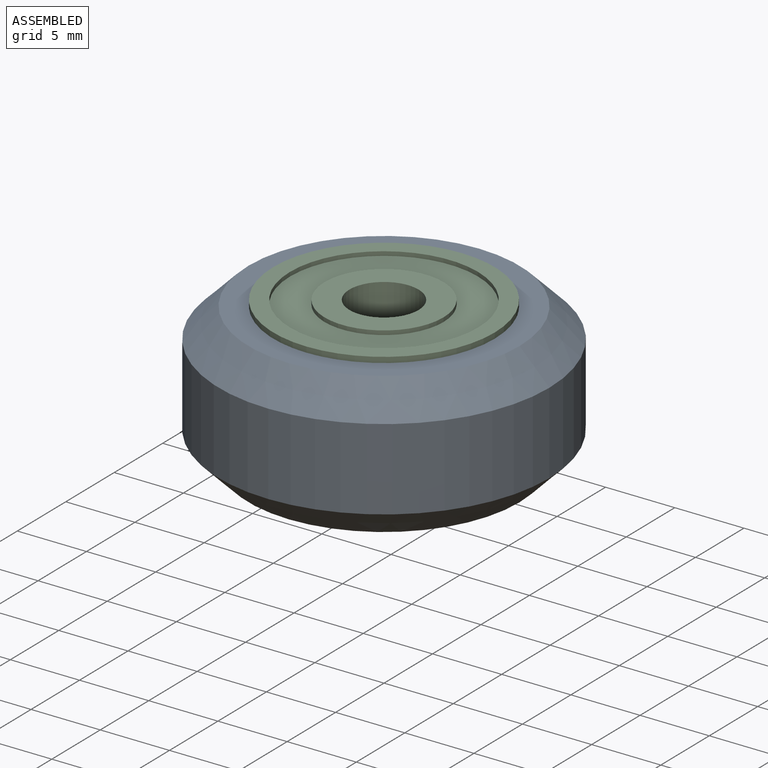
[diagram: assembled view]
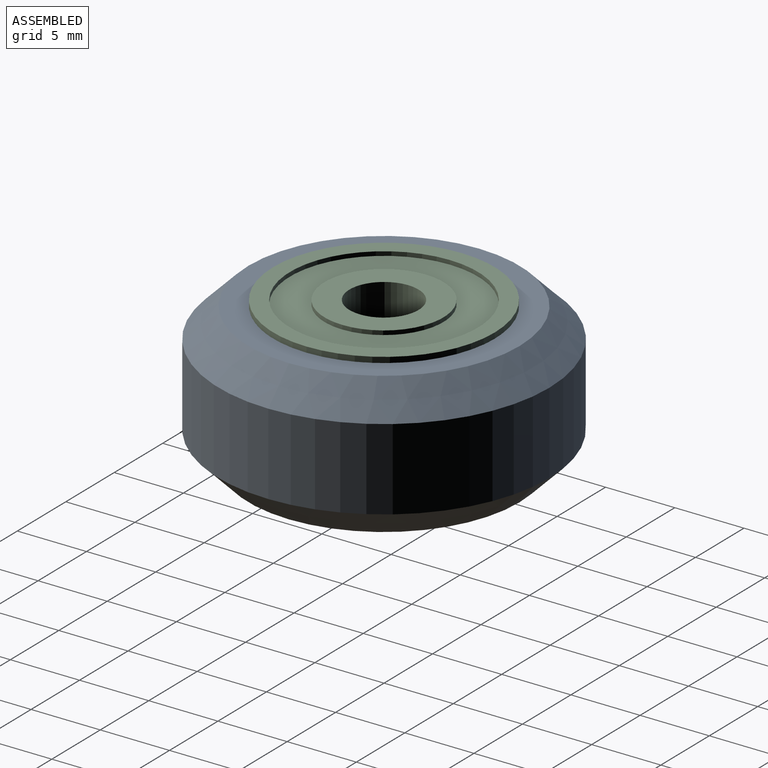
[diagram: assembled view, second angle]
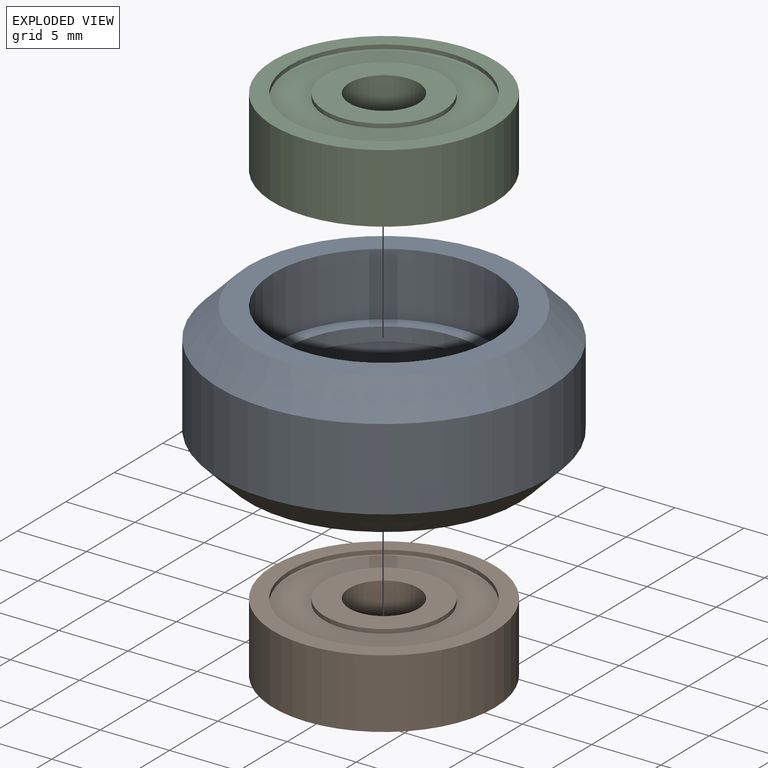
[diagram: exploded view]
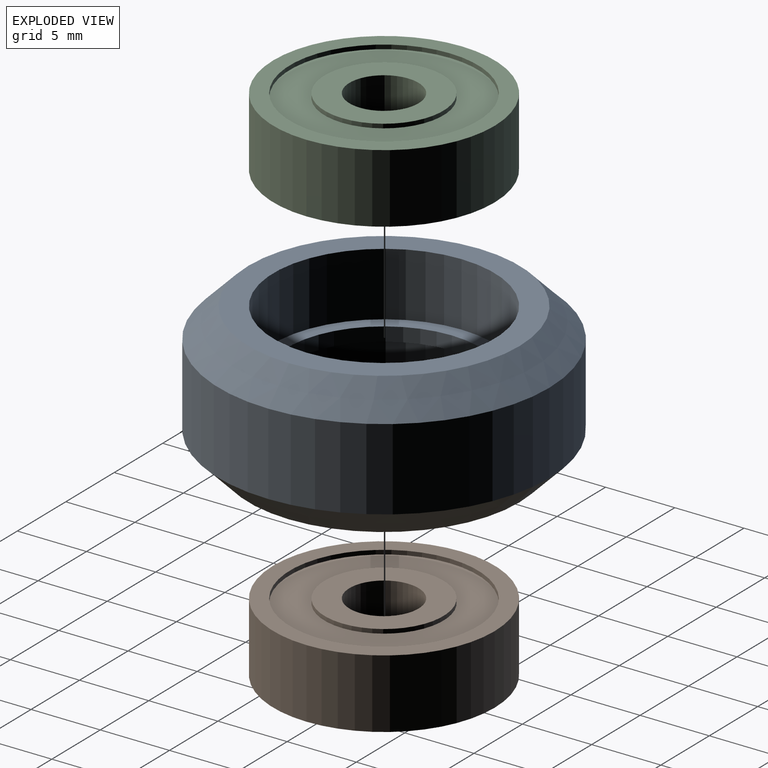
[diagram: exploded view, second angle]
ASSEMBLY  parts=3 mates=2
PART A: 10 faces, bbox 10.2x23.9x23.9 mm
  f0: plane 19.6x19.6mm, normal (1,0,0), area 100.7mm2, adj f1,f2
  f1: cone r=0mm half-angle=45deg, axis (-1,0,0), area 207.8mm2, adj f0,f3
  f2: cylinder r=8mm len=16mm, axis (1,0,0), area 231.2mm2, adj f0,f4
  f3: cylinder r=11.95mm len=23.9mm, axis (1,0,0), area 443mm2, adj f1,f5
  f4: plane 16x16mm, normal (1,0,0), area 47.1mm2, adj f2,f6
  f5: cone r=0mm half-angle=45deg, axis (1,0,0), area 207.8mm2, adj f3,f7
  f6: cylinder r=7mm len=14mm, axis (1,0,0), area 44mm2, adj f4,f8
  f7: plane 19.6x19.6mm, normal (-1,0,0), area 100.7mm2, adj f5,f9
  f8: plane 16x16mm, normal (-1,0,0), area 47.1mm2, adj f6,f9
  f9: cylinder r=8mm len=16mm, axis (1,0,0), area 231.2mm2, adj f7,f8
PART B: 12 faces, bbox 5x16x16 mm
  f0: cylinder r=8mm len=16mm, axis (1,0,0), area 251.3mm2, adj f1,f2
  f1: plane 16x16mm, normal (-1,0,0), area 55.8mm2, adj f0,f3
  f2: plane 16x16mm, normal (1,0,0), area 55.8mm2, adj f0,f4
  f3: cylinder r=6.8mm len=13.6mm, axis (1,0,0), area 12.8mm2, adj f1,f5
  f4: cylinder r=6.8mm len=13.6mm, axis (1,0,0), area 12.8mm2, adj f2,f6
  f5: plane 13.6x13.6mm, normal (-1,0,0), area 87.2mm2, adj f3,f7
  f6: plane 13.6x13.6mm, normal (1,0,0), area 87.2mm2, adj f4,f8
  f7: cylinder r=4.3mm len=8.6mm, axis (1,0,0), area 8.1mm2, adj f5,f9
  f8: cylinder r=4.3mm len=8.6mm, axis (1,0,0), area 8.1mm2, adj f6,f10
  f9: plane 8.6x8.6mm, normal (-1,0,0), area 38.5mm2, adj f7,f11
  f10: plane 8.6x8.6mm, normal (1,0,0), area 38.5mm2, adj f8,f11
  f11: cylinder r=2.5mm len=5mm, axis (1,0,0), area 78.5mm2, adj f9,f10
PART C: same geometry as B
PLACE A rot(axis=(0.71,0,-0.71),180deg) t=(0,0,-0.5)mm
PLACE B rot(axis=(0,1,0),90deg) t=(0,0,-3.5)mm
PLACE C rot(axis=(0,1,0),90deg) t=(0,0,2.5)mm
MATE fastened B.f0 <-> A.f1  axis (0,0,1) through (0,0,-1)mm
MATE fastened C.f0 <-> A.f1  axis (0,0,-1) through (0,0,0)mm
